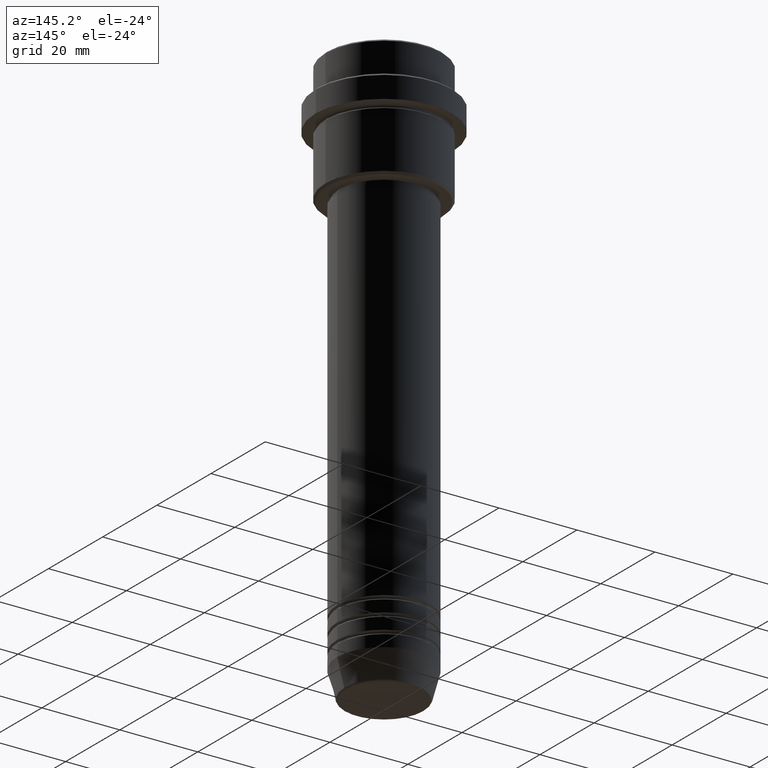
[diagram: clean part render]
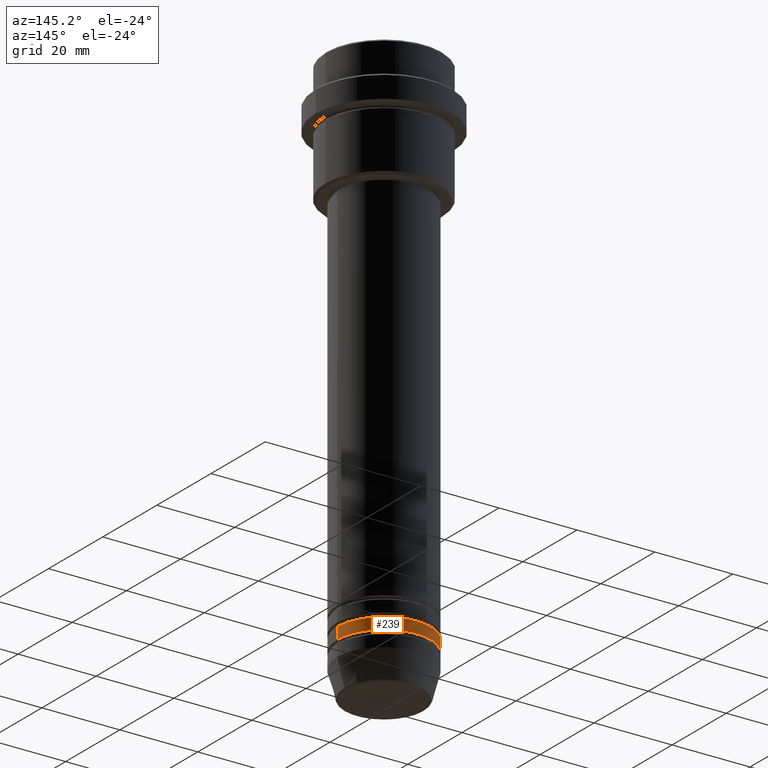
[diagram: same view with one face highlighted and labeled with its STEP entity id]
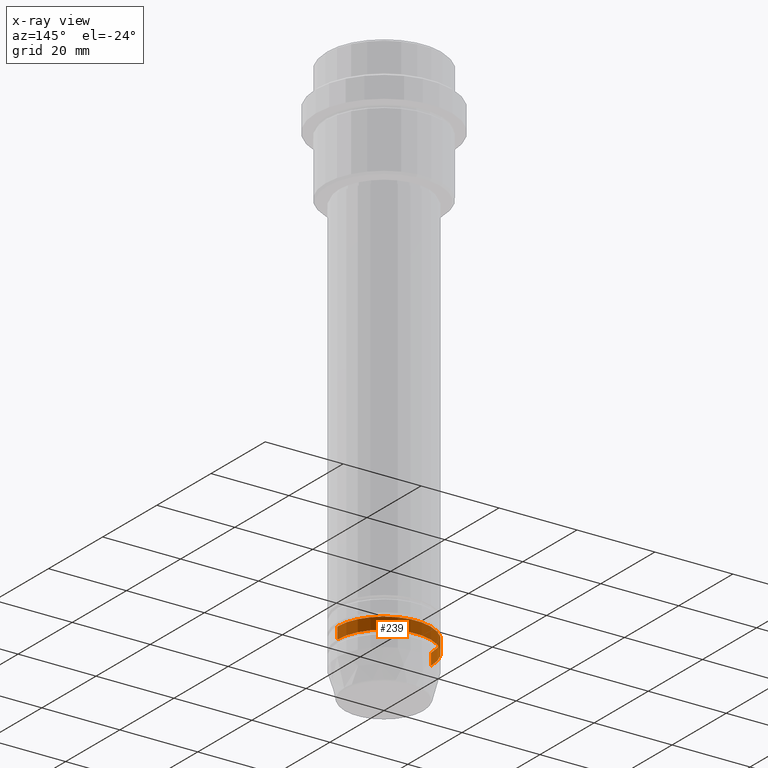
[diagram: x-ray of the same camera — body ghosted, the highlighted face saturated]
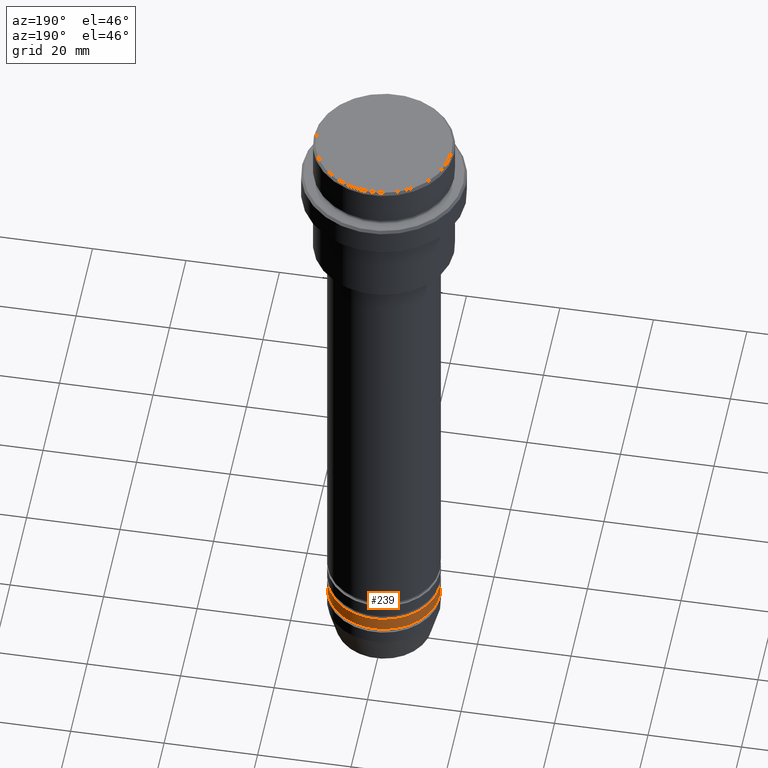
[diagram: same view with one face highlighted and labeled with its STEP entity id]
A machine part, auxiliary view. The second image highlights one B-rep face of the part: STEP entity #239.
The next image is the same camera in x-ray: the body ghosted, the highlighted face saturated — about 0% of this face is hidden behind the body in this view.
A second angle (auxiliary view) of the same face is appended — the face is thin or edge-on in the first view.
In plain terms, the highlighted cylindrical surface (partial cylindrical patch) has radius 12 mm, axis along (-0, -0, 1).
Its self-contained STEP definition (entity closure, byte-faithful):
#19 = CARTESIAN_POINT ( 'NONE',  ( 12.00000000000000000, 0.000000000000000000, -131.9999999999998579 ) ) ;
#62 = CARTESIAN_POINT ( 'NONE',  ( -12.00000000000000000, 1.469576158976823947E-15, 0.000000000000000000 ) ) ;
#99 = CARTESIAN_POINT ( 'NONE',  ( 0.000000000000000000, 0.000000000000000000, 0.000000000000000000 ) ) ;
#136 = EDGE_CURVE ( 'NONE', #970, #741, #966, .T. ) ;
#182 = DIRECTION ( 'NONE',  ( -0.000000000000000000, -0.000000000000000000, 1.000000000000000000 ) ) ;
#193 = CARTESIAN_POINT ( 'NONE',  ( 0.000000000000000000, 0.000000000000000000, -134.9999999999998295 ) ) ;
#206 = FACE_OUTER_BOUND ( 'NONE', #1208, .T. ) ;
#210 = CARTESIAN_POINT ( 'NONE',  ( 12.00000000000000000, 0.000000000000000000, -134.9999999999998295 ) ) ;
#216 = DIRECTION ( 'NONE',  ( -0.000000000000000000, -0.000000000000000000, 1.000000000000000000 ) ) ;
#239 = ADVANCED_FACE ( 'NONE', ( #206 ), #850, .T. ) ;
#405 = ORIENTED_EDGE ( 'NONE', *, *, #136, .F. ) ;
#412 = DIRECTION ( 'NONE',  ( 1.000000000000000000, 0.000000000000000000, 0.000000000000000000 ) ) ;
#446 = LINE ( 'NONE', #561, #563 ) ;
#466 = CARTESIAN_POINT ( 'NONE',  ( -12.00000000000000000, 1.469576158976823947E-15, -134.9999999999998295 ) ) ;
#543 = ORIENTED_EDGE ( 'NONE', *, *, #843, .F. ) ;
#544 = EDGE_CURVE ( 'NONE', #1246, #741, #702, .T. ) ;
#558 = AXIS2_PLACEMENT_3D ( 'NONE', #99, #216, #1289 ) ;
#561 = CARTESIAN_POINT ( 'NONE',  ( 12.00000000000000000, 0.000000000000000000, 0.000000000000000000 ) ) ;
#563 = VECTOR ( 'NONE', #894, 1000.000000000000000 ) ;
#575 = ORIENTED_EDGE ( 'NONE', *, *, #802, .T. ) ;
#589 = CIRCLE ( 'NONE', #1185, 12.00000000000000000 ) ;
#633 = AXIS2_PLACEMENT_3D ( 'NONE', #1150, #182, #1269 ) ;
#657 = VERTEX_POINT ( 'NONE', #210 ) ;
#702 = LINE ( 'NONE', #62, #1273 ) ;
#741 = VERTEX_POINT ( 'NONE', #1072 ) ;
#802 = EDGE_CURVE ( 'NONE', #657, #1246, #589, .T. ) ;
#843 = EDGE_CURVE ( 'NONE', #657, #970, #446, .T. ) ;
#850 = CYLINDRICAL_SURFACE ( 'NONE', #558, 12.00000000000000000 ) ;
#864 = ORIENTED_EDGE ( 'NONE', *, *, #544, .T. ) ;
#894 = DIRECTION ( 'NONE',  ( -0.000000000000000000, -0.000000000000000000, 1.000000000000000000 ) ) ;
#966 = CIRCLE ( 'NONE', #633, 12.00000000000000000 ) ;
#970 = VERTEX_POINT ( 'NONE', #19 ) ;
#1072 = CARTESIAN_POINT ( 'NONE',  ( -12.00000000000000000, 1.469576158976823947E-15, -131.9999999999998579 ) ) ;
#1148 = DIRECTION ( 'NONE',  ( -0.000000000000000000, -0.000000000000000000, 1.000000000000000000 ) ) ;
#1150 = CARTESIAN_POINT ( 'NONE',  ( 0.000000000000000000, 0.000000000000000000, -131.9999999999998579 ) ) ;
#1185 = AXIS2_PLACEMENT_3D ( 'NONE', #193, #1396, #412 ) ;
#1208 = EDGE_LOOP ( 'NONE', ( #575, #864, #405, #543 ) ) ;
#1246 = VERTEX_POINT ( 'NONE', #466 ) ;
#1269 = DIRECTION ( 'NONE',  ( 1.000000000000000000, 0.000000000000000000, 0.000000000000000000 ) ) ;
#1273 = VECTOR ( 'NONE', #1148, 1000.000000000000000 ) ;
#1289 = DIRECTION ( 'NONE',  ( 1.000000000000000000, 0.000000000000000000, 0.000000000000000000 ) ) ;
#1396 = DIRECTION ( 'NONE',  ( -0.000000000000000000, -0.000000000000000000, 1.000000000000000000 ) ) ;